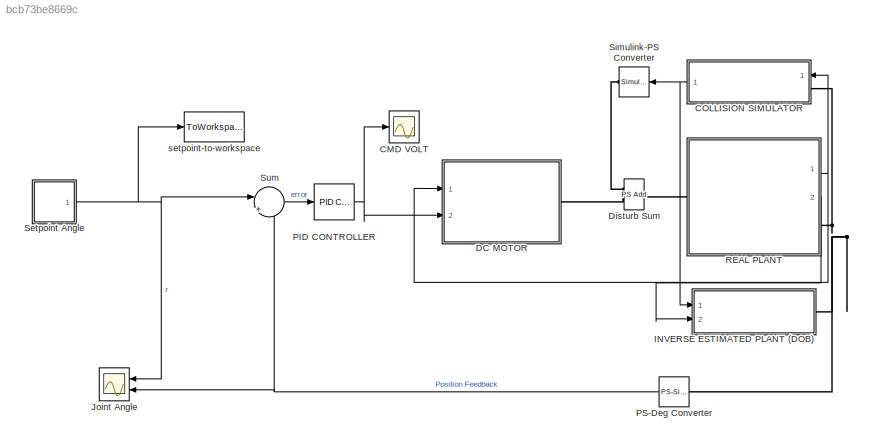
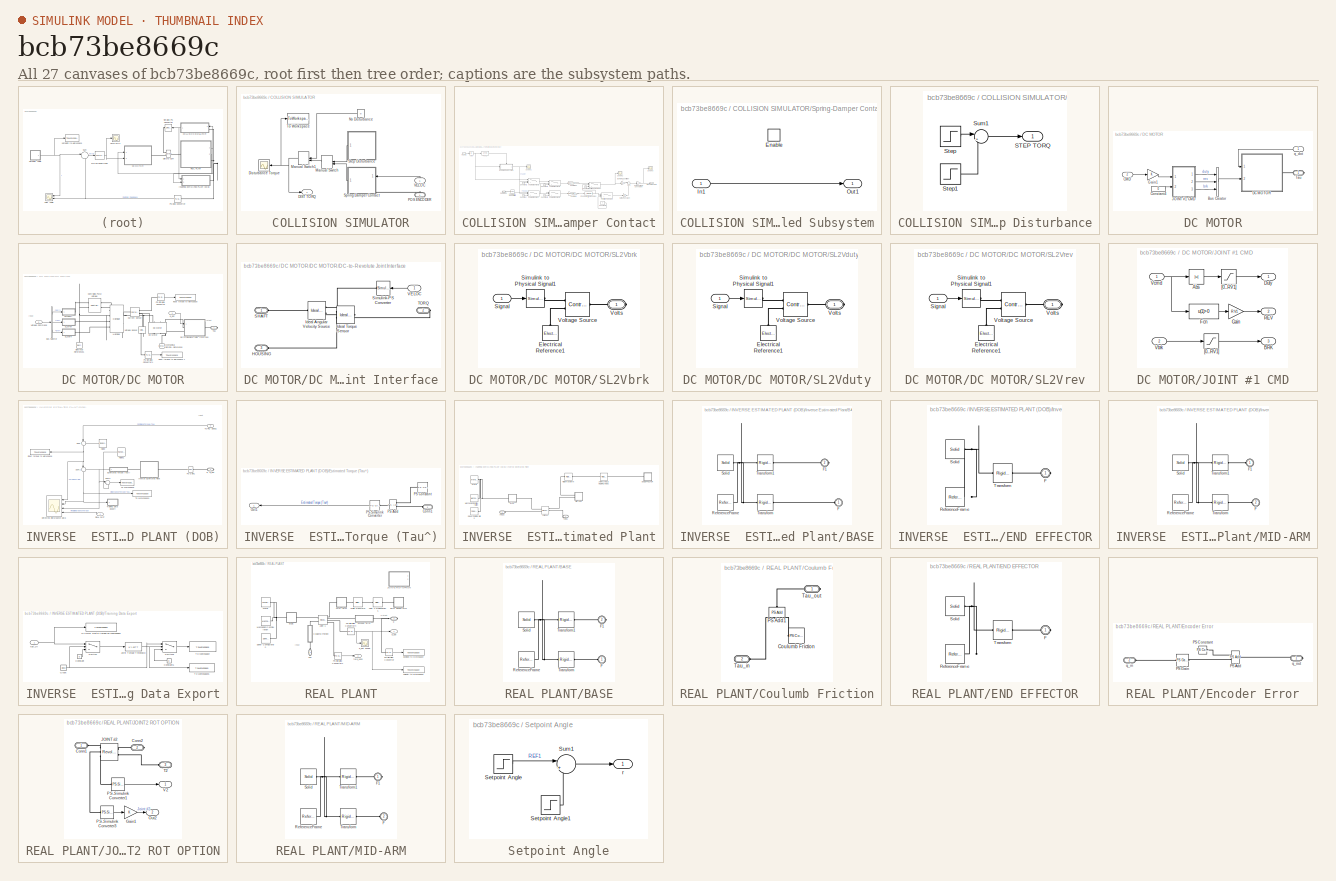
[diagram: thumbnail index - all 27 canvases of the model, root first then tree order]
MODEL slx_bcb73be8669c
KIND model
CONFIG AbsTol = auto
CONFIG FixedStep = auto
CONFIG MaxStep = auto
CONFIG MinStep = auto
CONFIG RelTol = 1e-3
CONFIG SampleTimeConstraint = Unconstrained
CONFIG Solver = VariableStepAuto
CONFIG SolverMode = Auto
CONFIG SolverName = VariableStepAuto
CONFIG StartTime = 0.0
CONFIG StopTime = 7
WORKSPACE source: external: MATLAB File  (data not in archive)
BLOCK [Scope] CMD VOLT
  Ports = [1]
  ScopeSpecificationString = Simulink.scopes.TimeScopeBlockCfg('CurrentConfiguration', extmgr.ConfigurationSet(extmgr.Configuration('Core','General UI',true),extmgr.Configuration('Core','Source UI',true),extmgr.Configuration('Sources','WiredSimulink',true,'DataLoggingVariableName','ScopeData1'),extmgr.Configuration('Visuals','Time Domain',true,'SerializedDisplays',{struct('MinYLimReal','9.10764','MaxYLimReal','12.89476','YLab...<+1427ch>
BLOCK [SubSystem] COLLISION SIMULATOR
  Ports = [1, 1, 0, 0, 0, 1]
  RequestExecContextInheritance = off
  Variant = off
BLOCK [Outport] COLLISION SIMULATOR/DIST TORQ
  IconDisplay = Port number
BLOCK [Scope] COLLISION SIMULATOR/Disturbance Torque
  Ports = [1]
  ScopeSpecificationString = Simulink.scopes.TimeScopeBlockCfg('CurrentConfiguration', extmgr.ConfigurationSet(extmgr.Configuration('Core','General UI',true),extmgr.Configuration('Core','Source UI',true),extmgr.Configuration('Sources','WiredSimulink',true,'DataLoggingVariableName','ScopeData1','DataLoggingLimitDataPoints',true,'DataLoggingSaveFormat','Array','DataLoggingDecimation','1','DataLoggingDecimateData',true),extmgr.C...<+1498ch>
BLOCK [ManualSwitch] COLLISION SIMULATOR/Manual Switch
BLOCK [ManualSwitch] COLLISION SIMULATOR/Manual Switch1
  CurrentSetting = 0
BLOCK [Constant] COLLISION SIMULATOR/No Disturbance
  Value = 0
BLOCK [PMIOPort] COLLISION SIMULATOR/POS ENCODER
  Port = 1
  Side = Left
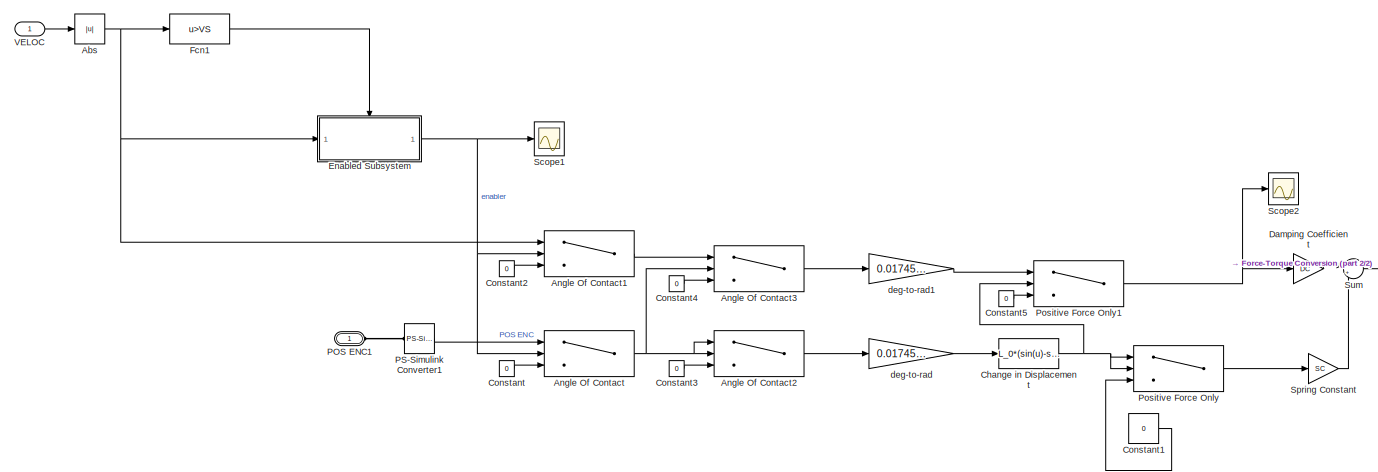
[diagram: COLLISION SIMULATOR/Spring-Damper Contact - part 1/2, most of the canvas]
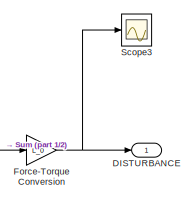
[diagram: COLLISION SIMULATOR/Spring-Damper Contact - part 2/2, middle right region]
BLOCK [SubSystem] COLLISION SIMULATOR/Spring-Damper Contact
  Ports = [1, 1, 0, 0, 0, 1]
  RequestExecContextInheritance = off
  Variant = off
BLOCK [Abs] COLLISION SIMULATOR/Spring-Damper Contact/Abs
  SaturateOnIntegerOverflow = off
BLOCK [Switch] COLLISION SIMULATOR/Spring-Damper Contact/Angle Of Contact
  InputSameDT = off
  SaturateOnIntegerOverflow = off
  Threshold = VS
BLOCK [Switch] COLLISION SIMULATOR/Spring-Damper Contact/Angle Of Contact1
  InputSameDT = off
  SaturateOnIntegerOverflow = off
  Threshold = VS
BLOCK [Switch] COLLISION SIMULATOR/Spring-Damper Contact/Angle Of Contact2
  Criteria = u2 > Threshold
  InputSameDT = off
  SaturateOnIntegerOverflow = off
  Threshold = CA
BLOCK [Switch] COLLISION SIMULATOR/Spring-Damper Contact/Angle Of Contact3
  Criteria = u2 > Threshold
  InputSameDT = off
  SaturateOnIntegerOverflow = off
  Threshold = CA
BLOCK [Fcn] COLLISION SIMULATOR/Spring-Damper Contact/Change in Displacement
  Expr = L_0*(sin(u)-sin(CAr))
BLOCK [Constant] COLLISION SIMULATOR/Spring-Damper Contact/Constant
  Value = 0
BLOCK [Constant] COLLISION SIMULATOR/Spring-Damper Contact/Constant1
  Value = 0
BLOCK [Constant] COLLISION SIMULATOR/Spring-Damper Contact/Constant2
  Value = 0
BLOCK [Constant] COLLISION SIMULATOR/Spring-Damper Contact/Constant3
  Value = 0
BLOCK [Constant] COLLISION SIMULATOR/Spring-Damper Contact/Constant4
  Value = 0
BLOCK [Constant] COLLISION SIMULATOR/Spring-Damper Contact/Constant5
  Value = 0
BLOCK [Outport] COLLISION SIMULATOR/Spring-Damper Contact/DISTURBANCE
  IconDisplay = Port number
BLOCK [Gain] COLLISION SIMULATOR/Spring-Damper Contact/Damping Coefficient
  Gain = DC
  OutDataTypeStr = Inherit: Inherit via internal rule
  ParamDataTypeStr = Inherit: Inherit via internal rule
  SaturateOnIntegerOverflow = off
BLOCK [SubSystem] COLLISION SIMULATOR/Spring-Damper Contact/Enabled Subsystem
  Ports = [1, 1, 1]
  RequestExecContextInheritance = off
  TreatAsAtomicUnit = on
  Variant = off
BLOCK [EnablePort] COLLISION SIMULATOR/Spring-Damper Contact/Enabled Subsystem/Enable
  Ports = []
BLOCK [Inport] COLLISION SIMULATOR/Spring-Damper Contact/Enabled Subsystem/In1
  IconDisplay = Port number
BLOCK [Outport] COLLISION SIMULATOR/Spring-Damper Contact/Enabled Subsystem/Out1
  IconDisplay = Port number
BLOCK [Fcn] COLLISION SIMULATOR/Spring-Damper Contact/Fcn1
  Expr = u>VS
BLOCK [Gain] COLLISION SIMULATOR/Spring-Damper Contact/Force-Torque Conversion
  Gain = L_0
  OutDataTypeStr = Inherit: Inherit via internal rule
  ParamDataTypeStr = Inherit: Inherit via internal rule
  SaturateOnIntegerOverflow = off
BLOCK [PMIOPort] COLLISION SIMULATOR/Spring-Damper Contact/POS ENC1
  Port = 1
  Side = Left
BLOCK [Reference] COLLISION SIMULATOR/Spring-Damper Contact/PS-Simulink Converter1  REF=nesl_utility/PS-Simulink
Converter
  Ports = [0, 1, 0, 0, 0, 1]
  SourceBlock = nesl_utility/PS-Simulink\nConverter
  SourceType = PS-Simulink\nConverter
BLOCK [Switch] COLLISION SIMULATOR/Spring-Damper Contact/Positive Force Only
  Criteria = u2 > Threshold
  InputSameDT = off
  SaturateOnIntegerOverflow = off
BLOCK [Switch] COLLISION SIMULATOR/Spring-Damper Contact/Positive Force Only1
  Criteria = u2 > Threshold
  InputSameDT = off
  SaturateOnIntegerOverflow = off
BLOCK [Scope] COLLISION SIMULATOR/Spring-Damper Contact/Scope1
  Ports = [1]
  ScopeSpecificationString = Simulink.scopes.TimeScopeBlockCfg('CurrentConfiguration', extmgr.ConfigurationSet(extmgr.Configuration('Core','General UI',true),extmgr.Configuration('Core','Source UI',true),extmgr.Configuration('Sources','WiredSimulink',true,'DataLoggingVariableName','ScopeData5'),extmgr.Configuration('Visuals','Time Domain',true,'SerializedDisplays',{struct('MinYLimReal','-10.81097','MaxYLimReal','97.29874','YL...<+1413ch>
BLOCK [Scope] COLLISION SIMULATOR/Spring-Damper Contact/Scope2
  Ports = [1]
  ScopeSpecificationString = Simulink.scopes.TimeScopeBlockCfg('CurrentConfiguration', extmgr.ConfigurationSet(extmgr.Configuration('Core','General UI',true),extmgr.Configuration('Core','Source UI',true),extmgr.Configuration('Sources','WiredSimulink',true,'DataLoggingVariableName','ScopeData3'),extmgr.Configuration('Visuals','Time Domain',true,'SerializedDisplays',{struct('MinYLimReal','-0.18869','MaxYLimReal','1.69818','YLab...<+1439ch>
BLOCK [Scope] COLLISION SIMULATOR/Spring-Damper Contact/Scope3
  Ports = [1]
  ScopeSpecificationString = Simulink.scopes.TimeScopeBlockCfg('CurrentConfiguration', extmgr.ConfigurationSet(extmgr.Configuration('Core','General UI',true),extmgr.Configuration('Core','Source UI',true),extmgr.Configuration('Sources','WiredSimulink',true,'DataLoggingVariableName','ScopeData6'),extmgr.Configuration('Visuals','Time Domain',true,'SerializedDisplays',{struct('MinYLimReal','-0.39319','MaxYLimReal','3.5387','YLabe...<+1378ch>
BLOCK [Gain] COLLISION SIMULATOR/Spring-Damper Contact/Spring Constant
  Gain = SC
  OutDataTypeStr = Inherit: Inherit via internal rule
  ParamDataTypeStr = Inherit: Inherit via internal rule
  SaturateOnIntegerOverflow = off
BLOCK [Sum] COLLISION SIMULATOR/Spring-Damper Contact/Sum
  IconShape = round
  InputSameDT = off
  Inputs = |++
  OutDataTypeStr = Inherit: Inherit via internal rule
  Ports = [2, 1]
  SaturateOnIntegerOverflow = off
BLOCK [Inport] COLLISION SIMULATOR/Spring-Damper Contact/VELOC
  IconDisplay = Port number
BLOCK [Gain] COLLISION SIMULATOR/Spring-Damper Contact/deg-to-rad
  Gain = 0.0174533
  OutDataTypeStr = Inherit: Inherit via internal rule
  ParamDataTypeStr = Inherit: Inherit via internal rule
  SaturateOnIntegerOverflow = off
BLOCK [Gain] COLLISION SIMULATOR/Spring-Damper Contact/deg-to-rad1
  Gain = 0.0174533
  OutDataTypeStr = Inherit: Inherit via internal rule
  ParamDataTypeStr = Inherit: Inherit via internal rule
  SaturateOnIntegerOverflow = off
BLOCK [SubSystem] COLLISION SIMULATOR/Step Disturbance
  Ports = [0, 1]
  RequestExecContextInheritance = off
  Variant = off
BLOCK [Outport] COLLISION SIMULATOR/Step Disturbance/STEP TORQ
  IconDisplay = Port number
BLOCK [Step] COLLISION SIMULATOR/Step Disturbance/Step
  After = disturbance_torque
  SampleTime = 0
  Time = disturbance_time
BLOCK [Step] COLLISION SIMULATOR/Step Disturbance/Step1
  After = -disturbance_torque
  SampleTime = 0
  Time = disturbance_time+0.2
BLOCK [Sum] COLLISION SIMULATOR/Step Disturbance/Sum1
  IconShape = round
  InputSameDT = off
  Inputs = |++
  OutDataTypeStr = Inherit: Inherit via internal rule
  Ports = [2, 1]
  SaturateOnIntegerOverflow = off
BLOCK [ToWorkspace] COLLISION SIMULATOR/To Workspace
  FixptAsFi = on
  MaxDataPoints = inf
  Ports = [1]
  SampleTime = -1
  Save2DSignal = 3-D array (concatenate along third dimension)
  SaveFormat = Structure With Time
  VariableName = disturbance_nm
BLOCK [Inport] COLLISION SIMULATOR/VELOC
  IconDisplay = Port number
BLOCK [SubSystem] DC MOTOR
  Ports = [2, 0, 0, 0, 0, 0, 1]
  RequestExecContextInheritance = off
  Variant = off
BLOCK [BusCreator] DC MOTOR/Bus Creator
  DisplayOption = bar
  InheritFromInputs = on
  Inputs = 3
  Ports = [3, 1]
BLOCK [Inport] DC MOTOR/CMD 
  IconDisplay = Port number
  Port = 2
BLOCK [Constant] DC MOTOR/Constant4
  SampleTime = Ts
  Value = 0
BLOCK [SubSystem] DC MOTOR/DC MOTOR
  Ports = [2, 0, 0, 0, 0, 0, 1]
  RequestExecContextInheritance = off
  Variant = off
BLOCK [BusSelector] DC MOTOR/DC MOTOR/Bus Selector
  OutputSignals = duty,rev,brk
  Ports = [1, 3]
BLOCK [Reference] DC MOTOR/DC MOTOR/Controlled PWM Voltage  REF=elec_lib/Actuators & Drivers/Drivers/Controlled PWM
Voltage
  Ports = [0, 0, 0, 0, 0, 2, 2]
  SourceBlock = elec_lib/Actuators & Drivers/Drivers/Controlled PWM\nVoltage
  SourceType = Controlled PWM\nVoltage
BLOCK [Reference] DC MOTOR/DC MOTOR/Current Sensor  REF=fl_lib/Electrical/Electrical Sensors/Current Sensor
  Ports = [0, 0, 0, 0, 0, 1, 2]
  SourceBlock = fl_lib/Electrical/Electrical Sensors/Current Sensor
  SourceType = Current Sensor
BLOCK [Reference] DC MOTOR/DC MOTOR/DC Motor  REF=elec_lib/Actuators & Drivers/Rotational Actuators/DC Motor
  Ports = [0, 0, 0, 0, 0, 2, 2]
  SourceBlock = elec_lib/Actuators & Drivers/Rotational Actuators/DC Motor
  SourceType = DC Motor
BLOCK [SubSystem] DC MOTOR/DC MOTOR/DC-to-Revolute Joint Interface
  Ports = [1, 0, 0, 0, 0, 2, 1]
  RequestExecContextInheritance = off
  Variant = off
BLOCK [PMIOPort] DC MOTOR/DC MOTOR/DC-to-Revolute Joint Interface/HOUSING
  Port = 3
  Side = Left
BLOCK [Reference] DC MOTOR/DC MOTOR/DC-to-Revolute Joint Interface/Ideal Angular Velocity Source  REF=fl_lib/Mechanical/Mechanical Sources/Ideal Angular
Velocity Source
  Ports = [0, 0, 0, 0, 0, 1, 2]
  SourceBlock = fl_lib/Mechanical/Mechanical Sources/Ideal Angular\nVelocity Source
  SourceType = Ideal Angular\nVelocity Source
BLOCK [Reference] DC MOTOR/DC MOTOR/DC-to-Revolute Joint Interface/Ideal Torque Sensor  REF=fl_lib/Mechanical/Mechanical Sensors/Ideal Torque Sensor
  Ports = [0, 0, 0, 0, 0, 1, 2]
  SourceBlock = fl_lib/Mechanical/Mechanical Sensors/Ideal Torque Sensor
  SourceType = Ideal Torque Sensor
BLOCK [PMIOPort] DC MOTOR/DC MOTOR/DC-to-Revolute Joint Interface/SHAFT
  Port = 1
  Side = Left
BLOCK [Reference] DC MOTOR/DC MOTOR/DC-to-Revolute Joint Interface/Simulink-PS Converter  REF=nesl_utility/Simulink-PS
Converter
  Ports = [1, 0, 0, 0, 0, 0, 1]
  SourceBlock = nesl_utility/Simulink-PS\nConverter
  SourceType = Simulink-PS\nConverter
BLOCK [PMIOPort] DC MOTOR/DC MOTOR/DC-to-Revolute Joint Interface/TORQ
  Port = 2
  Side = Right
BLOCK [Inport] DC MOTOR/DC MOTOR/DC-to-Revolute Joint Interface/VELOC
  IconDisplay = Port number
BLOCK [Reference] DC MOTOR/DC MOTOR/Electrical Reference1  REF=fl_lib/Electrical/Electrical Elements/Electrical Reference
  Ports = [0, 0, 0, 0, 0, 1]
  SourceBlock = fl_lib/Electrical/Electrical Elements/Electrical Reference
  SourceType = Electrical Reference
BLOCK [Reference] DC MOTOR/DC MOTOR/H-Bridge  REF=elec_lib/Actuators & Drivers/Drivers/H-Bridge
  Ports = [0, 0, 0, 0, 0, 4, 2]
  SourceBlock = elec_lib/Actuators & Drivers/Drivers/H-Bridge
  SourceType = H-Bridge
BLOCK [Reference] DC MOTOR/DC MOTOR/Mechanical Rotational Reference  REF=fl_lib/Mechanical/Rotational Elements/Mechanical
Rotational Reference
  Ports = [0, 0, 0, 0, 0, 1]
  SourceBlock = fl_lib/Mechanical/Rotational Elements/Mechanical\nRotational Reference
  SourceType = Mechanical\nRotational Reference
BLOCK [Reference] DC MOTOR/DC MOTOR/PS-Simulink Converter  REF=nesl_utility/PS-Simulink
Converter
  Ports = [0, 1, 0, 0, 0, 1]
  SourceBlock = nesl_utility/PS-Simulink\nConverter
  SourceType = PS-Simulink\nConverter
BLOCK [Reference] DC MOTOR/DC MOTOR/PS-Simulink Converter1  REF=nesl_utility/PS-Simulink
Converter
  Ports = [0, 1, 0, 0, 0, 1]
  SourceBlock = nesl_utility/PS-Simulink\nConverter
  SourceType = PS-Simulink\nConverter
BLOCK [SubSystem] DC MOTOR/DC MOTOR/SL2Vbrk
  Ports = [1, 0, 0, 0, 0, 0, 1]
  RequestExecContextInheritance = off
  Variant = off
BLOCK [Reference] DC MOTOR/DC MOTOR/SL2Vbrk/Electrical Reference1  REF=fl_lib/Electrical/Electrical Elements/Electrical Reference
  Ports = [0, 0, 0, 0, 0, 1]
  SourceBlock = fl_lib/Electrical/Electrical Elements/Electrical Reference
  SourceType = Electrical Reference
BLOCK [Inport] DC MOTOR/DC MOTOR/SL2Vbrk/Signal
  IconDisplay = Port number
BLOCK [Reference] DC MOTOR/DC MOTOR/SL2Vbrk/Simulink to Physical Signal1  REF=nesl_utility/Simulink-PS
Converter
  Ports = [1, 0, 0, 0, 0, 0, 1]
  SourceBlock = nesl_utility/Simulink-PS\nConverter
  SourceType = Simulink-PS\nConverter
BLOCK [Reference] DC MOTOR/DC MOTOR/SL2Vbrk/Voltage Source  REF=fl_lib/Electrical/Electrical Sources/Controlled Voltage
Source
  Ports = [0, 0, 0, 0, 0, 1, 2]
  SourceBlock = fl_lib/Electrical/Electrical Sources/Controlled Voltage\nSource
  SourceType = Controlled Voltage\nSource
BLOCK [PMIOPort] DC MOTOR/DC MOTOR/SL2Vbrk/Volts
  Port = 1
  Side = Right
  Tag = PMCPort
BLOCK [SubSystem] DC MOTOR/DC MOTOR/SL2Vduty
  Ports = [1, 0, 0, 0, 0, 0, 1]
  RequestExecContextInheritance = off
  Variant = off
BLOCK [Reference] DC MOTOR/DC MOTOR/SL2Vduty/Electrical Reference1  REF=fl_lib/Electrical/Electrical Elements/Electrical Reference
  Ports = [0, 0, 0, 0, 0, 1]
  SourceBlock = fl_lib/Electrical/Electrical Elements/Electrical Reference
  SourceType = Electrical Reference
BLOCK [Inport] DC MOTOR/DC MOTOR/SL2Vduty/Signal
  IconDisplay = Port number
BLOCK [Reference] DC MOTOR/DC MOTOR/SL2Vduty/Simulink to Physical Signal1  REF=nesl_utility/Simulink-PS
Converter
  Ports = [1, 0, 0, 0, 0, 0, 1]
  SourceBlock = nesl_utility/Simulink-PS\nConverter
  SourceType = Simulink-PS\nConverter
BLOCK [Reference] DC MOTOR/DC MOTOR/SL2Vduty/Voltage Source  REF=fl_lib/Electrical/Electrical Sources/Controlled Voltage
Source
  Ports = [0, 0, 0, 0, 0, 1, 2]
  SourceBlock = fl_lib/Electrical/Electrical Sources/Controlled Voltage\nSource
  SourceType = Controlled Voltage\nSource
BLOCK [PMIOPort] DC MOTOR/DC MOTOR/SL2Vduty/Volts
  Port = 1
  Side = Right
  Tag = PMCPort
BLOCK [SubSystem] DC MOTOR/DC MOTOR/SL2Vrev
  Ports = [1, 0, 0, 0, 0, 0, 1]
  RequestExecContextInheritance = off
  Variant = off
BLOCK [Reference] DC MOTOR/DC MOTOR/SL2Vrev/Electrical Reference1  REF=fl_lib/Electrical/Electrical Elements/Electrical Reference
  Ports = [0, 0, 0, 0, 0, 1]
  SourceBlock = fl_lib/Electrical/Electrical Elements/Electrical Reference
  SourceType = Electrical Reference
BLOCK [Inport] DC MOTOR/DC MOTOR/SL2Vrev/Signal
  IconDisplay = Port number
BLOCK [Reference] DC MOTOR/DC MOTOR/SL2Vrev/Simulink to Physical Signal1  REF=nesl_utility/Simulink-PS
Converter
  Ports = [1, 0, 0, 0, 0, 0, 1]
  SourceBlock = nesl_utility/Simulink-PS\nConverter
  SourceType = Simulink-PS\nConverter
BLOCK [Reference] DC MOTOR/DC MOTOR/SL2Vrev/Voltage Source  REF=fl_lib/Electrical/Electrical Sources/Controlled Voltage
Source
  Ports = [0, 0, 0, 0, 0, 1, 2]
  SourceBlock = fl_lib/Electrical/Electrical Sources/Controlled Voltage\nSource
  SourceType = Controlled Voltage\nSource
BLOCK [PMIOPort] DC MOTOR/DC MOTOR/SL2Vrev/Volts
  Port = 1
  Side = Right
  Tag = PMCPort
BLOCK [PMIOPort] DC MOTOR/DC MOTOR/Tau
  Port = 1
  Side = Right
BLOCK [Inport] DC MOTOR/DC MOTOR/Voltage Command
  IconDisplay = Port number
  Port = 2
BLOCK [Reference] DC MOTOR/DC MOTOR/Voltage Sensor  REF=fl_lib/Electrical/Electrical Sensors/Voltage Sensor
  Ports = [0, 0, 0, 0, 0, 1, 2]
  SourceBlock = fl_lib/Electrical/Electrical Sensors/Voltage Sensor
  SourceType = Voltage Sensor
BLOCK [ToWorkspace] DC MOTOR/DC MOTOR/input torque to workspace 
  FixptAsFi = on
  MaxDataPoints = inf
  Ports = [1]
  SampleTime = -1
  Save2DSignal = 3-D array (concatenate along third dimension)
  SaveFormat = Structure With Time
  VariableName = current_a
BLOCK [ToWorkspace] DC MOTOR/DC MOTOR/input torque to workspace 1
  FixptAsFi = on
  MaxDataPoints = inf
  Ports = [1]
  SampleTime = -1
  Save2DSignal = 3-D array (concatenate along third dimension)
  SaveFormat = Structure With Time
  VariableName = voltage_v
BLOCK [Inport] DC MOTOR/DC MOTOR/q_dot
  IconDisplay = Port number
BLOCK [Gain] DC MOTOR/Gain1
  OutDataTypeStr = Inherit: Inherit via internal rule
  ParamDataTypeStr = Inherit: Inherit via internal rule
  SaturateOnIntegerOverflow = off
BLOCK [SubSystem] DC MOTOR/JOINT #1 CMD
  Ports = [2, 3]
  RequestExecContextInheritance = off
  Variant = off
BLOCK [Abs] DC MOTOR/JOINT #1 CMD/Abs
  SaturateOnIntegerOverflow = off
BLOCK [Outport] DC MOTOR/JOINT #1 CMD/BRK
  IconDisplay = Port number
  Port = 3
BLOCK [Outport] DC MOTOR/JOINT #1 CMD/Duty
  IconDisplay = Port number
BLOCK [Fcn] DC MOTOR/JOINT #1 CMD/Fcn
  Expr = u(1)>0
BLOCK [Gain] DC MOTOR/JOINT #1 CMD/Gain
  Gain = RV1
  OutDataTypeStr = Inherit: Inherit via internal rule
  ParamDataTypeStr = Inherit: Inherit via internal rule
  SaturateOnIntegerOverflow = off
BLOCK [Outport] DC MOTOR/JOINT #1 CMD/REV
  IconDisplay = Port number
  Port = 2
BLOCK [Inport] DC MOTOR/JOINT #1 CMD/Vbrk
  IconDisplay = Port number
  Port = 2
BLOCK [Inport] DC MOTOR/JOINT #1 CMD/Vcmd
  IconDisplay = Port number
BLOCK [Saturate] DC MOTOR/JOINT #1 CMD/[0...RV1]
  InputPortMap = u0
  LowerLimit = 0
  Ports = [1, 1]
  UpperLimit = RV1
BLOCK [Saturate] DC MOTOR/JOINT #1 CMD/[0...RV1] 
  InputPortMap = u0
  LowerLimit = 0
  Ports = [1, 1]
  UpperLimit = RV1
BLOCK [PMIOPort] DC MOTOR/Tau
  Port = 1
  Side = Right
BLOCK [Inport] DC MOTOR/q_dot
  IconDisplay = Port number
BLOCK [Reference] Disturb Sum  REF=fl_lib/Physical Signals/Functions/PS Add
  Ports = [0, 0, 0, 0, 0, 2, 1]
  SourceBlock = fl_lib/Physical Signals/Functions/PS Add
  SourceType = PS Add
BLOCK [SubSystem] INVERSE  ESTIMATED PLANT (DOB)
  Ports = [2, 0, 0, 0, 0, 0, 1]
  RequestExecContextInheritance = off
  Variant = off
BLOCK [Scope] INVERSE  ESTIMATED PLANT (DOB)/Detected Disturbance Data
  NumInputPorts = 4
  Ports = [4]
  ScopeSpecificationString = Simulink.scopes.TimeScopeBlockCfg('CurrentConfiguration', extmgr.ConfigurationSet(extmgr.Configuration('Core','General UI',true),extmgr.Configuration('Core','Source UI',true),extmgr.Configuration('Sources','WiredSimulink',true,'DataLoggingVariableName','ScopeData1'),extmgr.Configuration('Visuals','Time Domain',true,'SerializedDisplays',{struct('MinYLimReal','-6.94896','MaxYLimReal','6.73685','YLab...<+1684ch>
BLOCK [SubSystem] INVERSE  ESTIMATED PLANT (DOB)/Estimated Torque (Tau^)
  Ports = [0, 1, 0, 0, 0, 1]
  RequestExecContextInheritance = off
  Variant = off
BLOCK [PMIOPort] INVERSE  ESTIMATED PLANT (DOB)/Estimated Torque (Tau^)/Conn1
  Port = 1
  Side = Left
BLOCK [Outport] INVERSE  ESTIMATED PLANT (DOB)/Estimated Torque (Tau^)/Out1
  IconDisplay = Port number
BLOCK [Reference] INVERSE  ESTIMATED PLANT (DOB)/Estimated Torque (Tau^)/PS Add  REF=fl_lib/Physical Signals/Functions/PS Add
  Ports = [0, 0, 0, 0, 0, 2, 1]
  SourceBlock = fl_lib/Physical Signals/Functions/PS Add
  SourceType = PS Add
BLOCK [Reference] INVERSE  ESTIMATED PLANT (DOB)/Estimated Torque (Tau^)/PS Constant  REF=fl_lib/Physical Signals/Sources/PS Constant
  Ports = [0, 0, 0, 0, 0, 0, 1]
  SourceBlock = fl_lib/Physical Signals/Sources/PS Constant
  SourceType = PS Constant
BLOCK [Reference] INVERSE  ESTIMATED PLANT (DOB)/Estimated Torque (Tau^)/PS-Simulink Converter  REF=nesl_utility/PS-Simulink
Converter
  Ports = [0, 1, 0, 0, 0, 1]
  SourceBlock = nesl_utility/PS-Simulink\nConverter
  SourceType = PS-Simulink\nConverter
BLOCK [SubSystem] INVERSE  ESTIMATED PLANT (DOB)/Inverse Estimated Plant
  Ports = [0, 0, 0, 0, 0, 1, 1]
  RequestExecContextInheritance = off
  Variant = off
BLOCK [PMIOPort] INVERSE  ESTIMATED PLANT (DOB)/Inverse Estimated Plant/ANGLE
  Port = 1
  Side = Left
BLOCK [SubSystem] INVERSE  ESTIMATED PLANT (DOB)/Inverse Estimated Plant/BASE
  Ports = [0, 0, 0, 0, 0, 1, 1]
  RequestExecContextInheritance = off
  Variant = off
BLOCK [PMIOPort] INVERSE  ESTIMATED PLANT (DOB)/Inverse Estimated Plant/BASE/F
  Port = 1
  Side = Left
BLOCK [PMIOPort] INVERSE  ESTIMATED PLANT (DOB)/Inverse Estimated Plant/BASE/F1
  Port = 2
  Side = Right
BLOCK [Reference] INVERSE  ESTIMATED PLANT (DOB)/Inverse Estimated Plant/BASE/ReferenceFrame  REF=sm_lib/Frames and
Transforms/Reference
Frame
  Ports = [0, 0, 0, 0, 0, 0, 1]
  SourceBlock = sm_lib/Frames and\nTransforms/Reference\nFrame
  SourceType = Reference\nFrame
BLOCK [Reference] INVERSE  ESTIMATED PLANT (DOB)/Inverse Estimated Plant/BASE/Solid  REF=sm_lib/Body Elements/Solid
  Ports = [0, 0, 0, 0, 0, 0, 1]
  SourceBlock = sm_lib/Body Elements/Solid
  SourceType = Solid
BLOCK [Reference] INVERSE  ESTIMATED PLANT (DOB)/Inverse Estimated Plant/BASE/Transform  REF=sm_lib/Frames and
Transforms/Rigid
Transform
  Ports = [0, 0, 0, 0, 0, 1, 1]
  SourceBlock = sm_lib/Frames and\nTransforms/Rigid\nTransform
  SourceType = Rigid\nTransform
BLOCK [Reference] INVERSE  ESTIMATED PLANT (DOB)/Inverse Estimated Plant/BASE/Transform1  REF=sm_lib/Frames and
Transforms/Rigid
Transform
  Ports = [0, 0, 0, 0, 0, 1, 1]
  SourceBlock = sm_lib/Frames and\nTransforms/Rigid\nTransform
  SourceType = Rigid\nTransform
BLOCK [SubSystem] INVERSE  ESTIMATED PLANT (DOB)/Inverse Estimated Plant/END EFFECTOR
  Ports = [0, 0, 0, 0, 0, 0, 1]
  RequestExecContextInheritance = off
  Variant = off
BLOCK [PMIOPort] INVERSE  ESTIMATED PLANT (DOB)/Inverse Estimated Plant/END EFFECTOR/F
  Port = 1
  Side = Right
BLOCK [Reference] INVERSE  ESTIMATED PLANT (DOB)/Inverse Estimated Plant/END EFFECTOR/ReferenceFrame  REF=sm_lib/Frames and
Transforms/Reference
Frame
  Ports = [0, 0, 0, 0, 0, 0, 1]
  SourceBlock = sm_lib/Frames and\nTransforms/Reference\nFrame
  SourceType = Reference\nFrame
BLOCK [Reference] INVERSE  ESTIMATED PLANT (DOB)/Inverse Estimated Plant/END EFFECTOR/Solid  REF=sm_lib/Body Elements/Solid
  Ports = [0, 0, 0, 0, 0, 0, 1]
  SourceBlock = sm_lib/Body Elements/Solid
  SourceType = Solid
BLOCK [Reference] INVERSE  ESTIMATED PLANT (DOB)/Inverse Estimated Plant/END EFFECTOR/Transform  REF=sm_lib/Frames and
Transforms/Rigid
Transform
  Ports = [0, 0, 0, 0, 0, 1, 1]
  SourceBlock = sm_lib/Frames and\nTransforms/Rigid\nTransform
  SourceType = Rigid\nTransform
BLOCK [Reference] INVERSE  ESTIMATED PLANT (DOB)/Inverse Estimated Plant/JOINT #1  REF=sm_lib/Joints/Revolute Joint
  Ports = [0, 0, 0, 0, 0, 2, 3]
  SourceBlock = sm_lib/Joints/Revolute Joint
  SourceType = Revolute Joint
BLOCK [Reference] INVERSE  ESTIMATED PLANT (DOB)/Inverse Estimated Plant/JOINT 2 ANGLE MODIFICATIONS  REF=sm_lib/Frames and
Transforms/Rigid
Transform
  Ports = [0, 0, 0, 0, 0, 1, 1]
  SourceBlock = sm_lib/Frames and\nTransforms/Rigid\nTransform
  SourceType = Rigid\nTransform
BLOCK [SubSystem] INVERSE  ESTIMATED PLANT (DOB)/Inverse Estimated Plant/MID-ARM
  Ports = [0, 0, 0, 0, 0, 2]
  RequestExecContextInheritance = off
  Variant = off
BLOCK [PMIOPort] INVERSE  ESTIMATED PLANT (DOB)/Inverse Estimated Plant/MID-ARM/F
  Port = 2
  Side = Left
BLOCK [PMIOPort] INVERSE  ESTIMATED PLANT (DOB)/Inverse Estimated Plant/MID-ARM/F1
  Port = 1
  Side = Left
BLOCK [Reference] INVERSE  ESTIMATED PLANT (DOB)/Inverse Estimated Plant/MID-ARM/ReferenceFrame  REF=sm_lib/Frames and
Transforms/Reference
Frame
  Ports = [0, 0, 0, 0, 0, 0, 1]
  SourceBlock = sm_lib/Frames and\nTransforms/Reference\nFrame
  SourceType = Reference\nFrame
BLOCK [Reference] INVERSE  ESTIMATED PLANT (DOB)/Inverse Estimated Plant/MID-ARM/Solid  REF=sm_lib/Body Elements/Solid
  Ports = [0, 0, 0, 0, 0, 0, 1]
  SourceBlock = sm_lib/Body Elements/Solid
  SourceType = Solid
BLOCK [Reference] INVERSE  ESTIMATED PLANT (DOB)/Inverse Estimated Plant/MID-ARM/Transform  REF=sm_lib/Frames and
Transforms/Rigid
Transform
  Ports = [0, 0, 0, 0, 0, 1, 1]
  SourceBlock = sm_lib/Frames and\nTransforms/Rigid\nTransform
  SourceType = Rigid\nTransform
BLOCK [Reference] INVERSE  ESTIMATED PLANT (DOB)/Inverse Estimated Plant/MID-ARM/Transform1  REF=sm_lib/Frames and
Transforms/Rigid
Transform
  Ports = [0, 0, 0, 0, 0, 1, 1]
  SourceBlock = sm_lib/Frames and\nTransforms/Rigid\nTransform
  SourceType = Rigid\nTransform
BLOCK [Reference] INVERSE  ESTIMATED PLANT (DOB)/Inverse Estimated Plant/MechanismConfiguration  REF=sm_lib/Utilities/Mechanism
Configuration
  Ports = [0, 0, 0, 0, 0, 0, 1]
  SourceBlock = sm_lib/Utilities/Mechanism\nConfiguration
  SourceType = Mechanism\nConfiguration
BLOCK [Reference] INVERSE  ESTIMATED PLANT (DOB)/Inverse Estimated Plant/Rigid Transform  REF=sm_lib/Frames and
Transforms/Rigid
Transform
  Ports = [0, 0, 0, 0, 0, 1, 1]
  SourceBlock = sm_lib/Frames and\nTransforms/Rigid\nTransform
  SourceType = Rigid\nTransform
BLOCK [Reference] INVERSE  ESTIMATED PLANT (DOB)/Inverse Estimated Plant/Solver Configuration  REF=nesl_utility/Solver
Configuration
  Commented = on
  Ports = [0, 0, 0, 0, 0, 0, 1]
  SourceBlock = nesl_utility/Solver\nConfiguration
  SourceType = Solver\nConfiguration
BLOCK [PMIOPort] INVERSE  ESTIMATED PLANT (DOB)/Inverse Estimated Plant/TORQ
  Port = 2
  Side = Right
BLOCK [Reference] INVERSE  ESTIMATED PLANT (DOB)/Inverse Estimated Plant/World  REF=sm_lib/Frames and
Transforms/World Frame
  Ports = [0, 0, 0, 0, 0, 0, 1]
  SourceBlock = sm_lib/Frames and\nTransforms/World Frame
  SourceType = World Frame
BLOCK [Reference] INVERSE  ESTIMATED PLANT (DOB)/Noise  REF=dspsrcs4/Random
Source
  Ports = [0, 1]
  SourceBlock = dspsrcs4/Random\nSource
  SourceType = Random Source
  UserDataPersistent = on
BLOCK [Reference] INVERSE  ESTIMATED PLANT (DOB)/Noise1  REF=dspsrcs4/Random
Source
  Ports = [0, 1]
  SourceBlock = dspsrcs4/Random\nSource
  SourceType = Random Source
  UserDataPersistent = on
BLOCK [Reference] INVERSE  ESTIMATED PLANT (DOB)/PS Gain1  REF=fl_lib/Physical Signals/Functions/PS Gain
  Ports = [0, 0, 0, 0, 0, 1, 1]
  SourceBlock = fl_lib/Physical Signals/Functions/PS Gain
  SourceType = PS Gain
BLOCK [Inport] INVERSE  ESTIMATED PLANT (DOB)/REAL DIST
  IconDisplay = Port number
BLOCK [Sum] INVERSE  ESTIMATED PLANT (DOB)/Sum
  IconShape = round
  InputSameDT = off
  Inputs = |++
  OutDataTypeStr = Inherit: Inherit via internal rule
  Ports = [2, 1]
  SaturateOnIntegerOverflow = off
BLOCK [Sum] INVERSE  ESTIMATED PLANT (DOB)/Sum1
  IconShape = round
  InputSameDT = off
  Inputs = |-+
  OutDataTypeStr = Inherit: Inherit via internal rule
  Ports = [2, 1]
  SaturateOnIntegerOverflow = off
BLOCK [Sum] INVERSE  ESTIMATED PLANT (DOB)/Sum2
  IconShape = round
  InputSameDT = off
  Inputs = |++
  OutDataTypeStr = Inherit: Inherit via internal rule
  Ports = [2, 1]
  SaturateOnIntegerOverflow = off
BLOCK [Inport] INVERSE  ESTIMATED PLANT (DOB)/TORQ SENS1
  IconDisplay = Port number
  Port = 2
BLOCK [ToWorkspace] INVERSE  ESTIMATED PLANT (DOB)/To Workspace
  FixptAsFi = on
  MaxDataPoints = inf
  Ports = [1]
  SampleTime = -1
  Save2DSignal = 3-D array (concatenate along third dimension)
  SaveFormat = Structure With Time
  VariableName = estimate_nm
BLOCK [ToWorkspace] INVERSE  ESTIMATED PLANT (DOB)/To Workspace1
  FixptAsFi = on
  MaxDataPoints = inf
  Ports = [1]
  SampleTime = -1
  Save2DSignal = 3-D array (concatenate along third dimension)
  SaveFormat = Structure With Time
  VariableName = disturb_est_nm
BLOCK [SubSystem] INVERSE  ESTIMATED PLANT (DOB)/Training Data Export
  Ports = [1]
  RequestExecContextInheritance = off
  Variant = off
BLOCK [Clock] INVERSE  ESTIMATED PLANT (DOB)/Training Data Export/Clock
  Decimation = 100
  DisplayTime = on
BLOCK [Constant] INVERSE  ESTIMATED PLANT (DOB)/Training Data Export/Constant
  Value = 0
BLOCK [Constant] INVERSE  ESTIMATED PLANT (DOB)/Training Data Export/Constant1
  Value = 0
BLOCK [Fcn] INVERSE  ESTIMATED PLANT (DOB)/Training Data Export/Joint Torque Threshold
  Expr = u > J1TT
BLOCK [ToWorkspace] INVERSE  ESTIMATED PLANT (DOB)/Training Data Export/STORE Delta Torque on Workspace
  FixptAsFi = on
  MaxDataPoints = inf
  Ports = [1]
  SampleTime = -1
  Save2DSignal = 3-D array (concatenate along third dimension)
  SaveFormat = Structure With Time
  VariableName = thresholding_0_dist
BLOCK [Switch] INVERSE  ESTIMATED PLANT (DOB)/Training Data Export/Switch
  Criteria = u2 > Threshold
  InputSameDT = off
  SaturateOnIntegerOverflow = off
  Threshold = DST
BLOCK [Switch] INVERSE  ESTIMATED PLANT (DOB)/Training Data Export/Switch1
  Criteria = u2 > Threshold
  InputSameDT = off
  SaturateOnIntegerOverflow = off
BLOCK [ToWorkspace] INVERSE  ESTIMATED PLANT (DOB)/Training Data Export/To Workspace
  FixptAsFi = on
  MaxDataPoints = inf
  Ports = [1]
  SampleTime = -1
  Save2DSignal = 3-D array (concatenate along third dimension)
  VariableName = detection_time
BLOCK [ToWorkspace] INVERSE  ESTIMATED PLANT (DOB)/Training Data Export/To Workspace1
  FixptAsFi = on
  MaxDataPoints = inf
  Ports = [1]
  SampleTime = -1
  Save2DSignal = 3-D array (concatenate along third dimension)
  SaveFormat = Timeseries
  VariableName = detected_torque
BLOCK [Inport] INVERSE  ESTIMATED PLANT (DOB)/Training Data Export/tau^_in
  IconDisplay = Port number
BLOCK [ToWorkspace] INVERSE  ESTIMATED PLANT (DOB)/input torque to workspace 
  FixptAsFi = on
  MaxDataPoints = inf
  Ports = [1]
  SampleTime = -1
  Save2DSignal = 3-D array (concatenate along third dimension)
  SaveFormat = Structure With Time
  VariableName = torqsens_nm
BLOCK [PMIOPort] INVERSE  ESTIMATED PLANT (DOB)/q, q_dot
  Port = 1
  Side = Right
BLOCK [Scope] Joint Angle
  NumInputPorts = 2
  Ports = [2]
  ScopeSpecificationString = Simulink.scopes.TimeScopeBlockCfg('CurrentConfiguration', extmgr.ConfigurationSet(extmgr.Configuration('Core','General UI',true),extmgr.Configuration('Core','Source UI',true),extmgr.Configuration('Sources','WiredSimulink',true,'DataLoggingVariableName','POS_PID','DataLogging',true,'DataLoggingSaveFormat','StructureWithTime'),extmgr.Configuration('Visuals','Time Domain',true,'SerializedDisplays',{s...<+1551ch>
BLOCK [Reference] PID CONTROLLER  REF=simulink/Continuous/PID Controller
  Ports = [1, 1]
  SourceBlock = simulink/Continuous/PID Controller
  SourceType = PID 1dof
BLOCK [Reference] PS-Deg Converter  REF=nesl_utility/PS-Simulink
Converter
  Ports = [0, 1, 0, 0, 0, 1]
  SourceBlock = nesl_utility/PS-Simulink\nConverter
  SourceType = PS-Simulink\nConverter
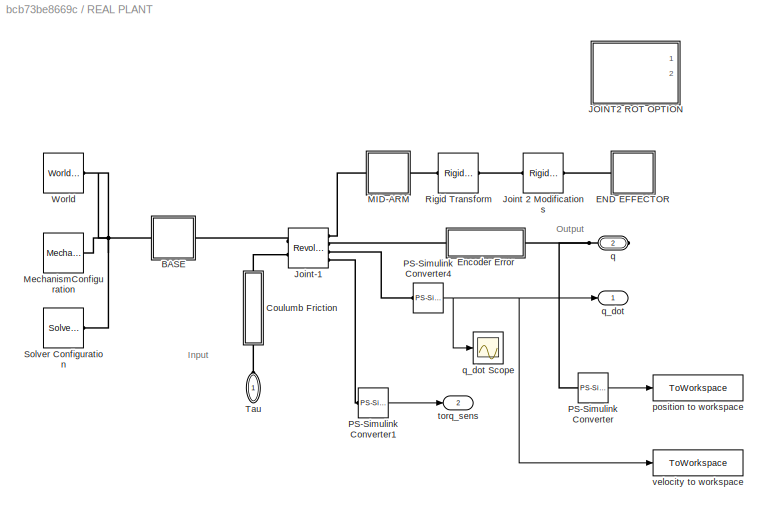
BLOCK [SubSystem] REAL PLANT
  Ports = [0, 2, 0, 0, 0, 1, 1]
  RequestExecContextInheritance = off
  Variant = off
BLOCK [SubSystem] REAL PLANT/BASE
  Ports = [0, 0, 0, 0, 0, 1, 1]
  RequestExecContextInheritance = off
  Variant = off
BLOCK [PMIOPort] REAL PLANT/BASE/F
  Port = 1
  Side = Left
BLOCK [PMIOPort] REAL PLANT/BASE/F1
  Port = 2
  Side = Right
BLOCK [Reference] REAL PLANT/BASE/ReferenceFrame  REF=sm_lib/Frames and
Transforms/Reference
Frame
  Ports = [0, 0, 0, 0, 0, 0, 1]
  SourceBlock = sm_lib/Frames and\nTransforms/Reference\nFrame
  SourceType = Reference\nFrame
BLOCK [Reference] REAL PLANT/BASE/Solid  REF=sm_lib/Body Elements/Solid
  Ports = [0, 0, 0, 0, 0, 0, 1]
  SourceBlock = sm_lib/Body Elements/Solid
  SourceType = Solid
BLOCK [Reference] REAL PLANT/BASE/Transform  REF=sm_lib/Frames and
Transforms/Rigid
Transform
  Ports = [0, 0, 0, 0, 0, 1, 1]
  SourceBlock = sm_lib/Frames and\nTransforms/Rigid\nTransform
  SourceType = Rigid\nTransform
BLOCK [Reference] REAL PLANT/BASE/Transform1  REF=sm_lib/Frames and
Transforms/Rigid
Transform
  Ports = [0, 0, 0, 0, 0, 1, 1]
  SourceBlock = sm_lib/Frames and\nTransforms/Rigid\nTransform
  SourceType = Rigid\nTransform
BLOCK [SubSystem] REAL PLANT/Coulumb Friction
  Ports = [0, 0, 0, 0, 0, 1, 1]
  RequestExecContextInheritance = off
  Variant = off
BLOCK [Reference] REAL PLANT/Coulumb Friction/Coulumb Friction  REF=fl_lib/Physical Signals/Sources/PS Constant
  Ports = [0, 0, 0, 0, 0, 0, 1]
  SourceBlock = fl_lib/Physical Signals/Sources/PS Constant
  SourceType = PS Constant
BLOCK [Reference] REAL PLANT/Coulumb Friction/PS Add1  REF=fl_lib/Physical Signals/Functions/PS Add
  Ports = [0, 0, 0, 0, 0, 2, 1]
  SourceBlock = fl_lib/Physical Signals/Functions/PS Add
  SourceType = PS Add
BLOCK [PMIOPort] REAL PLANT/Coulumb Friction/Tau_in
  Port = 2
  Side = Left
BLOCK [PMIOPort] REAL PLANT/Coulumb Friction/Tau_out
  Port = 1
  Side = Right
BLOCK [SubSystem] REAL PLANT/END EFFECTOR
  Ports = [0, 0, 0, 0, 0, 0, 1]
  RequestExecContextInheritance = off
  Variant = off
BLOCK [PMIOPort] REAL PLANT/END EFFECTOR/F
  Port = 1
  Side = Right
BLOCK [Reference] REAL PLANT/END EFFECTOR/ReferenceFrame  REF=sm_lib/Frames and
Transforms/Reference
Frame
  Ports = [0, 0, 0, 0, 0, 0, 1]
  SourceBlock = sm_lib/Frames and\nTransforms/Reference\nFrame
  SourceType = Reference\nFrame
BLOCK [Reference] REAL PLANT/END EFFECTOR/Solid  REF=sm_lib/Body Elements/Solid
  Ports = [0, 0, 0, 0, 0, 0, 1]
  SourceBlock = sm_lib/Body Elements/Solid
  SourceType = Solid
BLOCK [Reference] REAL PLANT/END EFFECTOR/Transform  REF=sm_lib/Frames and
Transforms/Rigid
Transform
  Ports = [0, 0, 0, 0, 0, 1, 1]
  SourceBlock = sm_lib/Frames and\nTransforms/Rigid\nTransform
  SourceType = Rigid\nTransform
BLOCK [SubSystem] REAL PLANT/Encoder Error
  Ports = [0, 0, 0, 0, 0, 1, 1]
  RequestExecContextInheritance = off
  Variant = off
BLOCK [Reference] REAL PLANT/Encoder Error/PS Add  REF=fl_lib/Physical Signals/Functions/PS Add
  Ports = [0, 0, 0, 0, 0, 2, 1]
  SourceBlock = fl_lib/Physical Signals/Functions/PS Add
  SourceType = PS Add
BLOCK [Reference] REAL PLANT/Encoder Error/PS Constant  REF=fl_lib/Physical Signals/Sources/PS Constant
  Ports = [0, 0, 0, 0, 0, 0, 1]
  SourceBlock = fl_lib/Physical Signals/Sources/PS Constant
  SourceType = PS Constant
BLOCK [Reference] REAL PLANT/Encoder Error/PS Gain  REF=fl_lib/Physical Signals/Functions/PS Gain
  Ports = [0, 0, 0, 0, 0, 1, 1]
  SourceBlock = fl_lib/Physical Signals/Functions/PS Gain
  SourceType = PS Gain
BLOCK [PMIOPort] REAL PLANT/Encoder Error/q_in
  Port = 2
  Side = Left
BLOCK [PMIOPort] REAL PLANT/Encoder Error/q_out
  Port = 1
  Side = Right
BLOCK [SubSystem] REAL PLANT/JOINT2 ROT OPTION
  Commented = on
  Ports = [0, 2, 0, 0, 0, 2, 1]
  RequestExecContextInheritance = off
  Variant = off
BLOCK [PMIOPort] REAL PLANT/JOINT2 ROT OPTION/Conn1
  Port = 1
  Side = Left
BLOCK [PMIOPort] REAL PLANT/JOINT2 ROT OPTION/Conn2
  Port = 2
  Side = Right
BLOCK [Gain] REAL PLANT/JOINT2 ROT OPTION/Gain1
  OutDataTypeStr = Inherit: Inherit via internal rule
  ParamDataTypeStr = Inherit: Inherit via internal rule
  SaturateOnIntegerOverflow = off
BLOCK [Reference] REAL PLANT/JOINT2 ROT OPTION/JOINT #2   REF=sm_lib/Joints/Revolute Joint
  Ports = [0, 0, 0, 0, 0, 2, 3]
  SourceBlock = sm_lib/Joints/Revolute Joint
  SourceType = Revolute Joint
BLOCK [Outport] REAL PLANT/JOINT2 ROT OPTION/Out2
  IconDisplay = Port number
  Port = 2
BLOCK [Reference] REAL PLANT/JOINT2 ROT OPTION/PS-Simulink Converter1  REF=nesl_utility/PS-Simulink
Converter
  Ports = [0, 1, 0, 0, 0, 1]
  SourceBlock = nesl_utility/PS-Simulink\nConverter
  SourceType = PS-Simulink\nConverter
BLOCK [Reference] REAL PLANT/JOINT2 ROT OPTION/PS-Simulink Converter3  REF=nesl_utility/PS-Simulink
Converter
  Ports = [0, 1, 0, 0, 0, 1]
  SourceBlock = nesl_utility/PS-Simulink\nConverter
  SourceType = PS-Simulink\nConverter
BLOCK [PMIOPort] REAL PLANT/JOINT2 ROT OPTION/T2
  Port = 3
  Side = Left
BLOCK [Outport] REAL PLANT/JOINT2 ROT OPTION/V2
  IconDisplay = Port number
BLOCK [Reference] REAL PLANT/Joint 2 Modifications  REF=sm_lib/Frames and
Transforms/Rigid
Transform
  Ports = [0, 0, 0, 0, 0, 1, 1]
  SourceBlock = sm_lib/Frames and\nTransforms/Rigid\nTransform
  SourceType = Rigid\nTransform
BLOCK [Reference] REAL PLANT/Joint-1  REF=sm_lib/Joints/Revolute Joint
  Ports = [0, 0, 0, 0, 0, 2, 4]
  SourceBlock = sm_lib/Joints/Revolute Joint
  SourceType = Revolute Joint
BLOCK [SubSystem] REAL PLANT/MID-ARM
  Ports = [0, 0, 0, 0, 0, 1, 1]
  RequestExecContextInheritance = off
  Variant = off
BLOCK [PMIOPort] REAL PLANT/MID-ARM/F
  Port = 2
  Side = Left
BLOCK [PMIOPort] REAL PLANT/MID-ARM/F1
  Port = 1
  Side = Right
BLOCK [Reference] REAL PLANT/MID-ARM/ReferenceFrame  REF=sm_lib/Frames and
Transforms/Reference
Frame
  Ports = [0, 0, 0, 0, 0, 0, 1]
  SourceBlock = sm_lib/Frames and\nTransforms/Reference\nFrame
  SourceType = Reference\nFrame
BLOCK [Reference] REAL PLANT/MID-ARM/Solid  REF=sm_lib/Body Elements/Solid
  Ports = [0, 0, 0, 0, 0, 0, 1]
  SourceBlock = sm_lib/Body Elements/Solid
  SourceType = Solid
BLOCK [Reference] REAL PLANT/MID-ARM/Transform  REF=sm_lib/Frames and
Transforms/Rigid
Transform
  Ports = [0, 0, 0, 0, 0, 1, 1]
  SourceBlock = sm_lib/Frames and\nTransforms/Rigid\nTransform
  SourceType = Rigid\nTransform
BLOCK [Reference] REAL PLANT/MID-ARM/Transform1  REF=sm_lib/Frames and
Transforms/Rigid
Transform
  Ports = [0, 0, 0, 0, 0, 1, 1]
  SourceBlock = sm_lib/Frames and\nTransforms/Rigid\nTransform
  SourceType = Rigid\nTransform
BLOCK [Reference] REAL PLANT/MechanismConfiguration  REF=sm_lib/Utilities/Mechanism
Configuration
  Ports = [0, 0, 0, 0, 0, 0, 1]
  SourceBlock = sm_lib/Utilities/Mechanism\nConfiguration
  SourceType = Mechanism\nConfiguration
BLOCK [Reference] REAL PLANT/PS-Simulink Converter  REF=nesl_utility/PS-Simulink
Converter
  Ports = [0, 1, 0, 0, 0, 1]
  SourceBlock = nesl_utility/PS-Simulink\nConverter
  SourceType = PS-Simulink\nConverter
BLOCK [Reference] REAL PLANT/PS-Simulink Converter1  REF=nesl_utility/PS-Simulink
Converter
  Ports = [0, 1, 0, 0, 0, 1]
  SourceBlock = nesl_utility/PS-Simulink\nConverter
  SourceType = PS-Simulink\nConverter
BLOCK [Reference] REAL PLANT/PS-Simulink Converter4  REF=nesl_utility/PS-Simulink
Converter
  Ports = [0, 1, 0, 0, 0, 1]
  SourceBlock = nesl_utility/PS-Simulink\nConverter
  SourceType = PS-Simulink\nConverter
BLOCK [Reference] REAL PLANT/Rigid Transform  REF=sm_lib/Frames and
Transforms/Rigid
Transform
  Ports = [0, 0, 0, 0, 0, 1, 1]
  SourceBlock = sm_lib/Frames and\nTransforms/Rigid\nTransform
  SourceType = Rigid\nTransform
BLOCK [Reference] REAL PLANT/Solver Configuration  REF=nesl_utility/Solver
Configuration
  Ports = [0, 0, 0, 0, 0, 0, 1]
  SourceBlock = nesl_utility/Solver\nConfiguration
  SourceType = Solver\nConfiguration
BLOCK [PMIOPort] REAL PLANT/Tau
  Port = 1
  Side = Left
BLOCK [Reference] REAL PLANT/World  REF=sm_lib/Frames and
Transforms/World Frame
  Ports = [0, 0, 0, 0, 0, 0, 1]
  SourceBlock = sm_lib/Frames and\nTransforms/World Frame
  SourceType = World Frame
BLOCK [ToWorkspace] REAL PLANT/position to workspace
  FixptAsFi = on
  MaxDataPoints = inf
  Ports = [1]
  SampleTime = -1
  Save2DSignal = 3-D array (concatenate along third dimension)
  SaveFormat = Structure With Time
  VariableName = position_deg
BLOCK [PMIOPort] REAL PLANT/q
  Port = 2
  Side = Right
BLOCK [Outport] REAL PLANT/q_dot
  IconDisplay = Port number
BLOCK [Scope] REAL PLANT/q_dot Scope
  Ports = [1]
  ScopeSpecificationString = Simulink.scopes.TimeScopeBlockCfg('CurrentConfiguration', extmgr.ConfigurationSet(extmgr.Configuration('Core','General UI',true),extmgr.Configuration('Core','Source UI',true),extmgr.Configuration('Sources','WiredSimulink',true,'DataLoggingVariableName','ScopeData2'),extmgr.Configuration('Visuals','Time Domain',true,'SerializedDisplays',{struct('MinYLimReal','-84.91957','MaxYLimReal','11.34396','YL...<+1420ch>
BLOCK [Outport] REAL PLANT/torq_sens
  IconDisplay = Port number
  Port = 2
BLOCK [ToWorkspace] REAL PLANT/velocity to workspace
  FixptAsFi = on
  MaxDataPoints = inf
  Ports = [1]
  SampleTime = -1
  Save2DSignal = 3-D array (concatenate along third dimension)
  SaveFormat = Structure With Time
  VariableName = velocity_degs
BLOCK [SubSystem] Setpoint Angle
  Ports = [0, 1]
  RequestExecContextInheritance = off
  Variant = off
BLOCK [Step] Setpoint Angle/Setpoint Angle
  After = first_ref
  SampleTime = 0
  Time = 0
BLOCK [Step] Setpoint Angle/Setpoint Angle1
  After = second_ref
  Commented = on
  SampleTime = 0
  Time = second_ref_time
BLOCK [Sum] Setpoint Angle/Sum1
  IconShape = round
  InputSameDT = off
  Inputs = |++
  OutDataTypeStr = Inherit: Inherit via internal rule
  Ports = [2, 1]
  SaturateOnIntegerOverflow = off
BLOCK [Outport] Setpoint Angle/r
  IconDisplay = Port number
BLOCK [Reference] Simulink-PS Converter  REF=nesl_utility/Simulink-PS
Converter
  Ports = [1, 0, 0, 0, 0, 0, 1]
  SourceBlock = nesl_utility/Simulink-PS\nConverter
  SourceType = Simulink-PS\nConverter
BLOCK [Sum] Sum
  IconShape = round
  InputSameDT = off
  Inputs = ||+|-
  OutDataTypeStr = Inherit: Inherit via internal rule
  Ports = [2, 1]
  SaturateOnIntegerOverflow = off
BLOCK [ToWorkspace] setpoint-to-workspace
  FixptAsFi = on
  MaxDataPoints = inf
  Ports = [1]
  SampleTime = -1
  Save2DSignal = 3-D array (concatenate along third dimension)
  SaveFormat = Structure With Time
  VariableName = setpoint_deg
ANNOTATION DC MOTOR/DC MOTOR: Input
ANNOTATION DC MOTOR/DC MOTOR: Output
ANNOTATION INVERSE  ESTIMATED PLANT (DOB): Input
ANNOTATION REAL PLANT: Input
ANNOTATION REAL PLANT: Output
NET COLLISION SIMULATOR/Manual Switch1:1 -> COLLISION SIMULATOR/DIST TORQ:1, COLLISION SIMULATOR/Disturbance Torque:1, COLLISION SIMULATOR/To Workspace:1
LINE COLLISION SIMULATOR/Manual Switch:1 -> COLLISION SIMULATOR/Manual Switch1:2
LINE COLLISION SIMULATOR/No Disturbance:1 -> COLLISION SIMULATOR/Manual Switch1:1
NET COLLISION SIMULATOR/Spring-Damper Contact/Abs:1 -> COLLISION SIMULATOR/Spring-Damper Contact/Angle Of Contact1:1, COLLISION SIMULATOR/Spring-Damper Contact/Enabled Subsystem:1, COLLISION SIMULATOR/Spring-Damper Contact/Fcn1:1
LINE COLLISION SIMULATOR/Spring-Damper Contact/Angle Of Contact1:1 -> COLLISION SIMULATOR/Spring-Damper Contact/Angle Of Contact3:1
LINE COLLISION SIMULATOR/Spring-Damper Contact/Angle Of Contact2:1 -> COLLISION SIMULATOR/Spring-Damper Contact/deg-to-rad:1
LINE COLLISION SIMULATOR/Spring-Damper Contact/Angle Of Contact3:1 -> COLLISION SIMULATOR/Spring-Damper Contact/deg-to-rad1:1
NET COLLISION SIMULATOR/Spring-Damper Contact/Angle Of Contact:1 -> COLLISION SIMULATOR/Spring-Damper Contact/Angle Of Contact2:1, COLLISION SIMULATOR/Spring-Damper Contact/Angle Of Contact2:2, COLLISION SIMULATOR/Spring-Damper Contact/Angle Of Contact3:2
NET COLLISION SIMULATOR/Spring-Damper Contact/Change in Displacement:1 -> COLLISION SIMULATOR/Spring-Damper Contact/Positive Force Only1:2, COLLISION SIMULATOR/Spring-Damper Contact/Positive Force Only:1, COLLISION SIMULATOR/Spring-Damper Contact/Positive Force Only:2
LINE COLLISION SIMULATOR/Spring-Damper Contact/Constant1:1 -> COLLISION SIMULATOR/Spring-Damper Contact/Positive Force Only:3
LINE COLLISION SIMULATOR/Spring-Damper Contact/Constant2:1 -> COLLISION SIMULATOR/Spring-Damper Contact/Angle Of Contact1:3
LINE COLLISION SIMULATOR/Spring-Damper Contact/Constant3:1 -> COLLISION SIMULATOR/Spring-Damper Contact/Angle Of Contact2:3
LINE COLLISION SIMULATOR/Spring-Damper Contact/Constant4:1 -> COLLISION SIMULATOR/Spring-Damper Contact/Angle Of Contact3:3
LINE COLLISION SIMULATOR/Spring-Damper Contact/Constant5:1 -> COLLISION SIMULATOR/Spring-Damper Contact/Positive Force Only1:3
LINE COLLISION SIMULATOR/Spring-Damper Contact/Constant:1 -> COLLISION SIMULATOR/Spring-Damper Contact/Angle Of Contact:3
LINE COLLISION SIMULATOR/Spring-Damper Contact/Damping Coefficient:1 -> COLLISION SIMULATOR/Spring-Damper Contact/Sum:1
LINE COLLISION SIMULATOR/Spring-Damper Contact/Enabled Subsystem/In1:1 -> COLLISION SIMULATOR/Spring-Damper Contact/Enabled Subsystem/Out1:1
NET COLLISION SIMULATOR/Spring-Damper Contact/Enabled Subsystem:1 -> COLLISION SIMULATOR/Spring-Damper Contact/Angle Of Contact1:2, COLLISION SIMULATOR/Spring-Damper Contact/Angle Of Contact:2, COLLISION SIMULATOR/Spring-Damper Contact/Scope1:1
LINE COLLISION SIMULATOR/Spring-Damper Contact/Fcn1:1 -> COLLISION SIMULATOR/Spring-Damper Contact/Enabled Subsystem:enable
NET COLLISION SIMULATOR/Spring-Damper Contact/Force-Torque Conversion:1 -> COLLISION SIMULATOR/Spring-Damper Contact/DISTURBANCE:1, COLLISION SIMULATOR/Spring-Damper Contact/Scope3:1
LINE COLLISION SIMULATOR/Spring-Damper Contact/PS-Simulink Converter1:1 -> COLLISION SIMULATOR/Spring-Damper Contact/Angle Of Contact:1
NET COLLISION SIMULATOR/Spring-Damper Contact/Positive Force Only1:1 -> COLLISION SIMULATOR/Spring-Damper Contact/Damping Coefficient:1, COLLISION SIMULATOR/Spring-Damper Contact/Scope2:1
LINE COLLISION SIMULATOR/Spring-Damper Contact/Positive Force Only:1 -> COLLISION SIMULATOR/Spring-Damper Contact/Spring Constant:1
LINE COLLISION SIMULATOR/Spring-Damper Contact/Spring Constant:1 -> COLLISION SIMULATOR/Spring-Damper Contact/Sum:2
LINE COLLISION SIMULATOR/Spring-Damper Contact/Sum:1 -> COLLISION SIMULATOR/Spring-Damper Contact/Force-Torque Conversion:1
LINE COLLISION SIMULATOR/Spring-Damper Contact/VELOC:1 -> COLLISION SIMULATOR/Spring-Damper Contact/Abs:1
LINE COLLISION SIMULATOR/Spring-Damper Contact/deg-to-rad1:1 -> COLLISION SIMULATOR/Spring-Damper Contact/Positive Force Only1:1
LINE COLLISION SIMULATOR/Spring-Damper Contact/deg-to-rad:1 -> COLLISION SIMULATOR/Spring-Damper Contact/Change in Displacement:1
LINE COLLISION SIMULATOR/Spring-Damper Contact:1 -> COLLISION SIMULATOR/Manual Switch:2
LINE COLLISION SIMULATOR/Step Disturbance/Step1:1 -> COLLISION SIMULATOR/Step Disturbance/Sum1:2
LINE COLLISION SIMULATOR/Step Disturbance/Step:1 -> COLLISION SIMULATOR/Step Disturbance/Sum1:1
LINE COLLISION SIMULATOR/Step Disturbance/Sum1:1 -> COLLISION SIMULATOR/Step Disturbance/STEP TORQ:1
LINE COLLISION SIMULATOR/Step Disturbance:1 -> COLLISION SIMULATOR/Manual Switch:1
LINE COLLISION SIMULATOR/VELOC:1 -> COLLISION SIMULATOR/Spring-Damper Contact:1
NET COLLISION SIMULATOR:1 -> INVERSE  ESTIMATED PLANT (DOB):1, Simulink-PS Converter:1
LINE DC MOTOR/Bus Creator:1 -> DC MOTOR/DC MOTOR:2
LINE DC MOTOR/CMD :1 -> DC MOTOR/Gain1:1
LINE DC MOTOR/Constant4:1 -> DC MOTOR/JOINT #1 CMD:2
LINE DC MOTOR/DC MOTOR/Bus Selector:1 -> DC MOTOR/DC MOTOR/SL2Vduty:1
LINE DC MOTOR/DC MOTOR/Bus Selector:2 -> DC MOTOR/DC MOTOR/SL2Vrev:1
LINE DC MOTOR/DC MOTOR/Bus Selector:3 -> DC MOTOR/DC MOTOR/SL2Vbrk:1
LINE DC MOTOR/DC MOTOR/DC-to-Revolute Joint Interface/VELOC:1 -> DC MOTOR/DC MOTOR/DC-to-Revolute Joint Interface/Simulink-PS Converter:1
LINE DC MOTOR/DC MOTOR/PS-Simulink Converter1:1 -> DC MOTOR/DC MOTOR/input torque to workspace 1:1
LINE DC MOTOR/DC MOTOR/PS-Simulink Converter:1 -> DC MOTOR/DC MOTOR/input torque to workspace :1
LINE DC MOTOR/DC MOTOR/SL2Vbrk/Signal:1 -> DC MOTOR/DC MOTOR/SL2Vbrk/Simulink to Physical Signal1:1
LINE DC MOTOR/DC MOTOR/SL2Vduty/Signal:1 -> DC MOTOR/DC MOTOR/SL2Vduty/Simulink to Physical Signal1:1
LINE DC MOTOR/DC MOTOR/SL2Vrev/Signal:1 -> DC MOTOR/DC MOTOR/SL2Vrev/Simulink to Physical Signal1:1
LINE DC MOTOR/DC MOTOR/Voltage Command:1 -> DC MOTOR/DC MOTOR/Bus Selector:1
LINE DC MOTOR/DC MOTOR/q_dot:1 -> DC MOTOR/DC MOTOR/DC-to-Revolute Joint Interface:1
LINE DC MOTOR/Gain1:1 -> DC MOTOR/JOINT #1 CMD:1
LINE DC MOTOR/JOINT #1 CMD/Abs:1 -> DC MOTOR/JOINT #1 CMD/[0...RV1]:1
LINE DC MOTOR/JOINT #1 CMD/Fcn:1 -> DC MOTOR/JOINT #1 CMD/Gain:1
LINE DC MOTOR/JOINT #1 CMD/Gain:1 -> DC MOTOR/JOINT #1 CMD/REV:1
LINE DC MOTOR/JOINT #1 CMD/Vbrk:1 -> DC MOTOR/JOINT #1 CMD/[0...RV1] :1
NET DC MOTOR/JOINT #1 CMD/Vcmd:1 -> DC MOTOR/JOINT #1 CMD/Abs:1, DC MOTOR/JOINT #1 CMD/Fcn:1
LINE DC MOTOR/JOINT #1 CMD/[0...RV1] :1 -> DC MOTOR/JOINT #1 CMD/BRK:1
LINE DC MOTOR/JOINT #1 CMD/[0...RV1]:1 -> DC MOTOR/JOINT #1 CMD/Duty:1
LINE DC MOTOR/JOINT #1 CMD:1 -> DC MOTOR/Bus Creator:1
LINE DC MOTOR/JOINT #1 CMD:2 -> DC MOTOR/Bus Creator:2
LINE DC MOTOR/JOINT #1 CMD:3 -> DC MOTOR/Bus Creator:3
LINE DC MOTOR/q_dot:1 -> DC MOTOR/DC MOTOR:1
LINE INVERSE  ESTIMATED PLANT (DOB)/Estimated Torque (Tau^)/PS-Simulink Converter:1 -> INVERSE  ESTIMATED PLANT (DOB)/Estimated Torque (Tau^)/Out1:1
NET INVERSE  ESTIMATED PLANT (DOB)/Estimated Torque (Tau^):1 -> INVERSE  ESTIMATED PLANT (DOB)/Detected Disturbance Data:3, INVERSE  ESTIMATED PLANT (DOB)/Sum1:2, INVERSE  ESTIMATED PLANT (DOB)/Sum2:1
LINE INVERSE  ESTIMATED PLANT (DOB)/Noise1:1 -> INVERSE  ESTIMATED PLANT (DOB)/Sum2:2
LINE INVERSE  ESTIMATED PLANT (DOB)/Noise:1 -> INVERSE  ESTIMATED PLANT (DOB)/Sum:2
LINE INVERSE  ESTIMATED PLANT (DOB)/REAL DIST:1 -> INVERSE  ESTIMATED PLANT (DOB)/Detected Disturbance Data:4
NET INVERSE  ESTIMATED PLANT (DOB)/Sum1:1 -> INVERSE  ESTIMATED PLANT (DOB)/Detected Disturbance Data:2, INVERSE  ESTIMATED PLANT (DOB)/To Workspace1:1, INVERSE  ESTIMATED PLANT (DOB)/Training Data Export:1
LINE INVERSE  ESTIMATED PLANT (DOB)/Sum2:1 -> INVERSE  ESTIMATED PLANT (DOB)/To Workspace:1
NET INVERSE  ESTIMATED PLANT (DOB)/Sum:1 -> INVERSE  ESTIMATED PLANT (DOB)/Detected Disturbance Data:1, INVERSE  ESTIMATED PLANT (DOB)/Sum1:1, INVERSE  ESTIMATED PLANT (DOB)/input torque to workspace :1
LINE INVERSE  ESTIMATED PLANT (DOB)/TORQ SENS1:1 -> INVERSE  ESTIMATED PLANT (DOB)/Sum:1
NET INVERSE  ESTIMATED PLANT (DOB)/Training Data Export/Clock:1 -> INVERSE  ESTIMATED PLANT (DOB)/Training Data Export/Switch1:1, INVERSE  ESTIMATED PLANT (DOB)/Training Data Export/Switch:2
LINE INVERSE  ESTIMATED PLANT (DOB)/Training Data Export/Constant1:1 -> INVERSE  ESTIMATED PLANT (DOB)/Training Data Export/Switch1:3
LINE INVERSE  ESTIMATED PLANT (DOB)/Training Data Export/Constant:1 -> INVERSE  ESTIMATED PLANT (DOB)/Training Data Export/Switch:3
NET INVERSE  ESTIMATED PLANT (DOB)/Training Data Export/Joint Torque Threshold:1 -> INVERSE  ESTIMATED PLANT (DOB)/Training Data Export/Switch1:2, INVERSE  ESTIMATED PLANT (DOB)/Training Data Export/To Workspace1:1
LINE INVERSE  ESTIMATED PLANT (DOB)/Training Data Export/Switch1:1 -> INVERSE  ESTIMATED PLANT (DOB)/Training Data Export/To Workspace:1
LINE INVERSE  ESTIMATED PLANT (DOB)/Training Data Export/Switch:1 -> INVERSE  ESTIMATED PLANT (DOB)/Training Data Export/Joint Torque Threshold:1
NET INVERSE  ESTIMATED PLANT (DOB)/Training Data Export/tau^_in:1 -> INVERSE  ESTIMATED PLANT (DOB)/Training Data Export/STORE Delta Torque on Workspace:1, INVERSE  ESTIMATED PLANT (DOB)/Training Data Export/Switch:1
NET PID CONTROLLER:1 -> CMD VOLT:1, DC MOTOR:2
NET PS-Deg Converter:1 -> Joint Angle:2, Sum:2
LINE REAL PLANT/JOINT2 ROT OPTION/Gain1:1 -> REAL PLANT/JOINT2 ROT OPTION/Out2:1
LINE REAL PLANT/JOINT2 ROT OPTION/PS-Simulink Converter1:1 -> REAL PLANT/JOINT2 ROT OPTION/V2:1
LINE REAL PLANT/JOINT2 ROT OPTION/PS-Simulink Converter3:1 -> REAL PLANT/JOINT2 ROT OPTION/Gain1:1
LINE REAL PLANT/PS-Simulink Converter1:1 -> REAL PLANT/torq_sens:1
NET REAL PLANT/PS-Simulink Converter4:1 -> REAL PLANT/q_dot Scope:1, REAL PLANT/q_dot:1, REAL PLANT/velocity to workspace:1
LINE REAL PLANT/PS-Simulink Converter:1 -> REAL PLANT/position to workspace:1
NET REAL PLANT:1 -> COLLISION SIMULATOR:1, DC MOTOR:1
LINE REAL PLANT:2 -> INVERSE  ESTIMATED PLANT (DOB):2
LINE Setpoint Angle/Setpoint Angle1:1 -> Setpoint Angle/Sum1:2
LINE Setpoint Angle/Setpoint Angle:1 -> Setpoint Angle/Sum1:1
LINE Setpoint Angle/Sum1:1 -> Setpoint Angle/r:1
NET Setpoint Angle:1 -> Joint Angle:1, Sum:1, setpoint-to-workspace:1
LINE Sum:1 -> PID CONTROLLER:1
PLINE COLLISION SIMULATOR/POS ENCODER:RConn1 -- COLLISION SIMULATOR/Spring-Damper Contact:LConn1
PLINE COLLISION SIMULATOR/Spring-Damper Contact/POS ENC1:RConn1 -- COLLISION SIMULATOR/Spring-Damper Contact/PS-Simulink Converter1:LConn1
PNET net1: COLLISION SIMULATOR:LConn1 -- INVERSE  ESTIMATED PLANT (DOB):RConn1 -- PS-Deg Converter:LConn1 -- REAL PLANT:RConn1
PLINE DC MOTOR/DC MOTOR/Controlled PWM Voltage:LConn1 -- DC MOTOR/DC MOTOR/SL2Vduty:RConn1
PNET net2: DC MOTOR/DC MOTOR/Controlled PWM Voltage:LConn2 -- DC MOTOR/DC MOTOR/Controlled PWM Voltage:RConn2 -- DC MOTOR/DC MOTOR/DC Motor:RConn1 -- DC MOTOR/DC MOTOR/Electrical Reference1:LConn1 -- DC MOTOR/DC MOTOR/H-Bridge:LConn2 -- DC MOTOR/DC MOTOR/H-Bridge:RConn2 -- DC MOTOR/DC MOTOR/Voltage Sensor:RConn2
PLINE DC MOTOR/DC MOTOR/Controlled PWM Voltage:RConn1 -- DC MOTOR/DC MOTOR/H-Bridge:LConn1
PLINE DC MOTOR/DC MOTOR/Current Sensor:LConn1 -- DC MOTOR/DC MOTOR/H-Bridge:RConn1
PLINE DC MOTOR/DC MOTOR/Current Sensor:RConn1 -- DC MOTOR/DC MOTOR/PS-Simulink Converter:LConn1
PNET net3: DC MOTOR/DC MOTOR/Current Sensor:RConn2 -- DC MOTOR/DC MOTOR/DC Motor:LConn1 -- DC MOTOR/DC MOTOR/Voltage Sensor:LConn1
PLINE DC MOTOR/DC MOTOR/DC Motor:LConn2 -- DC MOTOR/DC MOTOR/DC-to-Revolute Joint Interface:LConn1
PNET net4: DC MOTOR/DC MOTOR/DC Motor:RConn2 -- DC MOTOR/DC MOTOR/DC-to-Revolute Joint Interface:LConn2 -- DC MOTOR/DC MOTOR/Mechanical Rotational Reference:LConn1
PLINE DC MOTOR/DC MOTOR/DC-to-Revolute Joint Interface/HOUSING:RConn1 -- DC MOTOR/DC MOTOR/DC-to-Revolute Joint Interface/Ideal Torque Sensor:RConn1
PLINE DC MOTOR/DC MOTOR/DC-to-Revolute Joint Interface/Ideal Angular Velocity Source:LConn1 -- DC MOTOR/DC MOTOR/DC-to-Revolute Joint Interface/SHAFT:RConn1
PLINE DC MOTOR/DC MOTOR/DC-to-Revolute Joint Interface/Ideal Angular Velocity Source:RConn1 -- DC MOTOR/DC MOTOR/DC-to-Revolute Joint Interface/Simulink-PS Converter:RConn1
PLINE DC MOTOR/DC MOTOR/DC-to-Revolute Joint Interface/Ideal Angular Velocity Source:RConn2 -- DC MOTOR/DC MOTOR/DC-to-Revolute Joint Interface/Ideal Torque Sensor:LConn1
PLINE DC MOTOR/DC MOTOR/DC-to-Revolute Joint Interface/Ideal Torque Sensor:RConn2 -- DC MOTOR/DC MOTOR/DC-to-Revolute Joint Interface/TORQ:RConn1
PLINE DC MOTOR/DC MOTOR/DC-to-Revolute Joint Interface:RConn1 -- DC MOTOR/DC MOTOR/Tau:RConn1
PLINE DC MOTOR/DC MOTOR/H-Bridge:LConn3 -- DC MOTOR/DC MOTOR/SL2Vrev:RConn1
PLINE DC MOTOR/DC MOTOR/H-Bridge:LConn4 -- DC MOTOR/DC MOTOR/SL2Vbrk:RConn1
PLINE DC MOTOR/DC MOTOR/PS-Simulink Converter1:LConn1 -- DC MOTOR/DC MOTOR/Voltage Sensor:RConn1
PLINE DC MOTOR/DC MOTOR/SL2Vbrk/Electrical Reference1:LConn1 -- DC MOTOR/DC MOTOR/SL2Vbrk/Voltage Source:RConn2
PLINE DC MOTOR/DC MOTOR/SL2Vbrk/Simulink to Physical Signal1:RConn1 -- DC MOTOR/DC MOTOR/SL2Vbrk/Voltage Source:RConn1
PLINE DC MOTOR/DC MOTOR/SL2Vbrk/Voltage Source:LConn1 -- DC MOTOR/DC MOTOR/SL2Vbrk/Volts:RConn1
PLINE DC MOTOR/DC MOTOR/SL2Vduty/Electrical Reference1:LConn1 -- DC MOTOR/DC MOTOR/SL2Vduty/Voltage Source:RConn2
PLINE DC MOTOR/DC MOTOR/SL2Vduty/Simulink to Physical Signal1:RConn1 -- DC MOTOR/DC MOTOR/SL2Vduty/Voltage Source:RConn1
PLINE DC MOTOR/DC MOTOR/SL2Vduty/Voltage Source:LConn1 -- DC MOTOR/DC MOTOR/SL2Vduty/Volts:RConn1
PLINE DC MOTOR/DC MOTOR/SL2Vrev/Electrical Reference1:LConn1 -- DC MOTOR/DC MOTOR/SL2Vrev/Voltage Source:RConn2
PLINE DC MOTOR/DC MOTOR/SL2Vrev/Simulink to Physical Signal1:RConn1 -- DC MOTOR/DC MOTOR/SL2Vrev/Voltage Source:RConn1
PLINE DC MOTOR/DC MOTOR/SL2Vrev/Voltage Source:LConn1 -- DC MOTOR/DC MOTOR/SL2Vrev/Volts:RConn1
PLINE DC MOTOR/DC MOTOR:RConn1 -- DC MOTOR/Tau:RConn1
PLINE DC MOTOR:RConn1 -- Disturb Sum:LConn2
PLINE Disturb Sum:LConn1 -- Simulink-PS Converter:RConn1
PLINE Disturb Sum:RConn1 -- REAL PLANT:LConn1
PLINE INVERSE  ESTIMATED PLANT (DOB)/Estimated Torque (Tau^)/Conn1:RConn1 -- INVERSE  ESTIMATED PLANT (DOB)/Estimated Torque (Tau^)/PS Add:LConn2
PLINE INVERSE  ESTIMATED PLANT (DOB)/Estimated Torque (Tau^)/PS Add:LConn1 -- INVERSE  ESTIMATED PLANT (DOB)/Estimated Torque (Tau^)/PS Constant:RConn1
PLINE INVERSE  ESTIMATED PLANT (DOB)/Estimated Torque (Tau^)/PS Add:RConn1 -- INVERSE  ESTIMATED PLANT (DOB)/Estimated Torque (Tau^)/PS-Simulink Converter:LConn1
PLINE INVERSE  ESTIMATED PLANT (DOB)/Estimated Torque (Tau^):LConn1 -- INVERSE  ESTIMATED PLANT (DOB)/Inverse Estimated Plant:RConn1
PLINE INVERSE  ESTIMATED PLANT (DOB)/Inverse Estimated Plant/ANGLE:RConn1 -- INVERSE  ESTIMATED PLANT (DOB)/Inverse Estimated Plant/JOINT #1:LConn2
PLINE INVERSE  ESTIMATED PLANT (DOB)/Inverse Estimated Plant/BASE/F1:RConn1 -- INVERSE  ESTIMATED PLANT (DOB)/Inverse Estimated Plant/BASE/Transform1:RConn1
PLINE INVERSE  ESTIMATED PLANT (DOB)/Inverse Estimated Plant/BASE/F:RConn1 -- INVERSE  ESTIMATED PLANT (DOB)/Inverse Estimated Plant/BASE/Transform:RConn1
PNET net5: INVERSE  ESTIMATED PLANT (DOB)/Inverse Estimated Plant/BASE/ReferenceFrame:RConn1 -- INVERSE  ESTIMATED PLANT (DOB)/Inverse Estimated Plant/BASE/Solid:RConn1 -- INVERSE  ESTIMATED PLANT (DOB)/Inverse Estimated Plant/BASE/Transform1:LConn1 -- INVERSE  ESTIMATED PLANT (DOB)/Inverse Estimated Plant/BASE/Transform:LConn1
PNET net6: INVERSE  ESTIMATED PLANT (DOB)/Inverse Estimated Plant/BASE:LConn1 -- INVERSE  ESTIMATED PLANT (DOB)/Inverse Estimated Plant/MechanismConfiguration:RConn1 -- INVERSE  ESTIMATED PLANT (DOB)/Inverse Estimated Plant/Solver Configuration:RConn1 -- INVERSE  ESTIMATED PLANT (DOB)/Inverse Estimated Plant/World:RConn1
PLINE INVERSE  ESTIMATED PLANT (DOB)/Inverse Estimated Plant/BASE:RConn1 -- INVERSE  ESTIMATED PLANT (DOB)/Inverse Estimated Plant/JOINT #1:LConn1
PLINE INVERSE  ESTIMATED PLANT (DOB)/Inverse Estimated Plant/END EFFECTOR/F:RConn1 -- INVERSE  ESTIMATED PLANT (DOB)/Inverse Estimated Plant/END EFFECTOR/Transform:RConn1
PNET net7: INVERSE  ESTIMATED PLANT (DOB)/Inverse Estimated Plant/END EFFECTOR/ReferenceFrame:RConn1 -- INVERSE  ESTIMATED PLANT (DOB)/Inverse Estimated Plant/END EFFECTOR/Solid:RConn1 -- INVERSE  ESTIMATED PLANT (DOB)/Inverse Estimated Plant/END EFFECTOR/Transform:LConn1
PLINE INVERSE  ESTIMATED PLANT (DOB)/Inverse Estimated Plant/END EFFECTOR:RConn1 -- INVERSE  ESTIMATED PLANT (DOB)/Inverse Estimated Plant/JOINT 2 ANGLE MODIFICATIONS:RConn1
PLINE INVERSE  ESTIMATED PLANT (DOB)/Inverse Estimated Plant/JOINT #1:RConn1 -- INVERSE  ESTIMATED PLANT (DOB)/Inverse Estimated Plant/MID-ARM:LConn2
PLINE INVERSE  ESTIMATED PLANT (DOB)/Inverse Estimated Plant/JOINT #1:RConn2 -- INVERSE  ESTIMATED PLANT (DOB)/Inverse Estimated Plant/TORQ:RConn1
PLINE INVERSE  ESTIMATED PLANT (DOB)/Inverse Estimated Plant/JOINT 2 ANGLE MODIFICATIONS:LConn1 -- INVERSE  ESTIMATED PLANT (DOB)/Inverse Estimated Plant/Rigid Transform:RConn1
PLINE INVERSE  ESTIMATED PLANT (DOB)/Inverse Estimated Plant/MID-ARM/F1:RConn1 -- INVERSE  ESTIMATED PLANT (DOB)/Inverse Estimated Plant/MID-ARM/Transform1:RConn1
PLINE INVERSE  ESTIMATED PLANT (DOB)/Inverse Estimated Plant/MID-ARM/F:RConn1 -- INVERSE  ESTIMATED PLANT (DOB)/Inverse Estimated Plant/MID-ARM/Transform:RConn1
PNET net8: INVERSE  ESTIMATED PLANT (DOB)/Inverse Estimated Plant/MID-ARM/ReferenceFrame:RConn1 -- INVERSE  ESTIMATED PLANT (DOB)/Inverse Estimated Plant/MID-ARM/Solid:RConn1 -- INVERSE  ESTIMATED PLANT (DOB)/Inverse Estimated Plant/MID-ARM/Transform1:LConn1 -- INVERSE  ESTIMATED PLANT (DOB)/Inverse Estimated Plant/MID-ARM/Transform:LConn1
PLINE INVERSE  ESTIMATED PLANT (DOB)/Inverse Estimated Plant/MID-ARM:LConn1 -- INVERSE  ESTIMATED PLANT (DOB)/Inverse Estimated Plant/Rigid Transform:LConn1
PLINE INVERSE  ESTIMATED PLANT (DOB)/Inverse Estimated Plant:LConn1 -- INVERSE  ESTIMATED PLANT (DOB)/PS Gain1:RConn1
PLINE INVERSE  ESTIMATED PLANT (DOB)/PS Gain1:LConn1 -- INVERSE  ESTIMATED PLANT (DOB)/q, q_dot:RConn1
PLINE REAL PLANT/BASE/F1:RConn1 -- REAL PLANT/BASE/Transform1:RConn1
PLINE REAL PLANT/BASE/F:RConn1 -- REAL PLANT/BASE/Transform:RConn1
PNET net9: REAL PLANT/BASE/ReferenceFrame:RConn1 -- REAL PLANT/BASE/Solid:RConn1 -- REAL PLANT/BASE/Transform1:LConn1 -- REAL PLANT/BASE/Transform:LConn1
PNET net10: REAL PLANT/BASE:LConn1 -- REAL PLANT/MechanismConfiguration:RConn1 -- REAL PLANT/Solver Configuration:RConn1 -- REAL PLANT/World:RConn1
PLINE REAL PLANT/BASE:RConn1 -- REAL PLANT/Joint-1:LConn1
PLINE REAL PLANT/Coulumb Friction/Coulumb Friction:RConn1 -- REAL PLANT/Coulumb Friction/PS Add1:LConn2
PLINE REAL PLANT/Coulumb Friction/PS Add1:LConn1 -- REAL PLANT/Coulumb Friction/Tau_in:RConn1
PLINE REAL PLANT/Coulumb Friction/PS Add1:RConn1 -- REAL PLANT/Coulumb Friction/Tau_out:RConn1
PLINE REAL PLANT/Coulumb Friction:LConn1 -- REAL PLANT/Tau:RConn1
PLINE REAL PLANT/Coulumb Friction:RConn1 -- REAL PLANT/Joint-1:LConn2
PLINE REAL PLANT/END EFFECTOR/F:RConn1 -- REAL PLANT/END EFFECTOR/Transform:RConn1
PNET net11: REAL PLANT/END EFFECTOR/ReferenceFrame:RConn1 -- REAL PLANT/END EFFECTOR/Solid:RConn1 -- REAL PLANT/END EFFECTOR/Transform:LConn1
PLINE REAL PLANT/END EFFECTOR:RConn1 -- REAL PLANT/Joint 2 Modifications:RConn1
PLINE REAL PLANT/Encoder Error/PS Add:LConn1 -- REAL PLANT/Encoder Error/PS Constant:RConn1
PLINE REAL PLANT/Encoder Error/PS Add:LConn2 -- REAL PLANT/Encoder Error/PS Gain:RConn1
PLINE REAL PLANT/Encoder Error/PS Add:RConn1 -- REAL PLANT/Encoder Error/q_out:RConn1
PLINE REAL PLANT/Encoder Error/PS Gain:LConn1 -- REAL PLANT/Encoder Error/q_in:RConn1
PLINE REAL PLANT/Encoder Error:LConn1 -- REAL PLANT/Joint-1:RConn2
PNET net12: REAL PLANT/Encoder Error:RConn1 -- REAL PLANT/PS-Simulink Converter:LConn1 -- REAL PLANT/q:RConn1
PLINE REAL PLANT/JOINT2 ROT OPTION/Conn1:RConn1 -- REAL PLANT/JOINT2 ROT OPTION/JOINT #2 :RConn1
PLINE REAL PLANT/JOINT2 ROT OPTION/Conn2:RConn1 -- REAL PLANT/JOINT2 ROT OPTION/JOINT #2 :LConn1
PLINE REAL PLANT/JOINT2 ROT OPTION/JOINT #2 :LConn2 -- REAL PLANT/JOINT2 ROT OPTION/T2:RConn1
PLINE REAL PLANT/JOINT2 ROT OPTION/JOINT #2 :RConn2 -- REAL PLANT/JOINT2 ROT OPTION/PS-Simulink Converter3:LConn1
PLINE REAL PLANT/JOINT2 ROT OPTION/JOINT #2 :RConn3 -- REAL PLANT/JOINT2 ROT OPTION/PS-Simulink Converter1:LConn1
PLINE REAL PLANT/Joint 2 Modifications:LConn1 -- REAL PLANT/Rigid Transform:RConn1
PLINE REAL PLANT/Joint-1:RConn1 -- REAL PLANT/MID-ARM:LConn1
PLINE REAL PLANT/Joint-1:RConn3 -- REAL PLANT/PS-Simulink Converter4:LConn1
PLINE REAL PLANT/Joint-1:RConn4 -- REAL PLANT/PS-Simulink Converter1:LConn1
PLINE REAL PLANT/MID-ARM/F1:RConn1 -- REAL PLANT/MID-ARM/Transform1:RConn1
PLINE REAL PLANT/MID-ARM/F:RConn1 -- REAL PLANT/MID-ARM/Transform:RConn1
PNET net13: REAL PLANT/MID-ARM/ReferenceFrame:RConn1 -- REAL PLANT/MID-ARM/Solid:RConn1 -- REAL PLANT/MID-ARM/Transform1:LConn1 -- REAL PLANT/MID-ARM/Transform:LConn1
PLINE REAL PLANT/MID-ARM:RConn1 -- REAL PLANT/Rigid Transform:LConn1
note: NET lines group one-source signal fan-out (src -> all destinations, sorted); 1:1 wires keep LINE; PNET lines group multi-terminal physical nets as a canonical sorted terminal list (undirected conserving connections); 2-terminal nets keep the pairwise PLINE form
